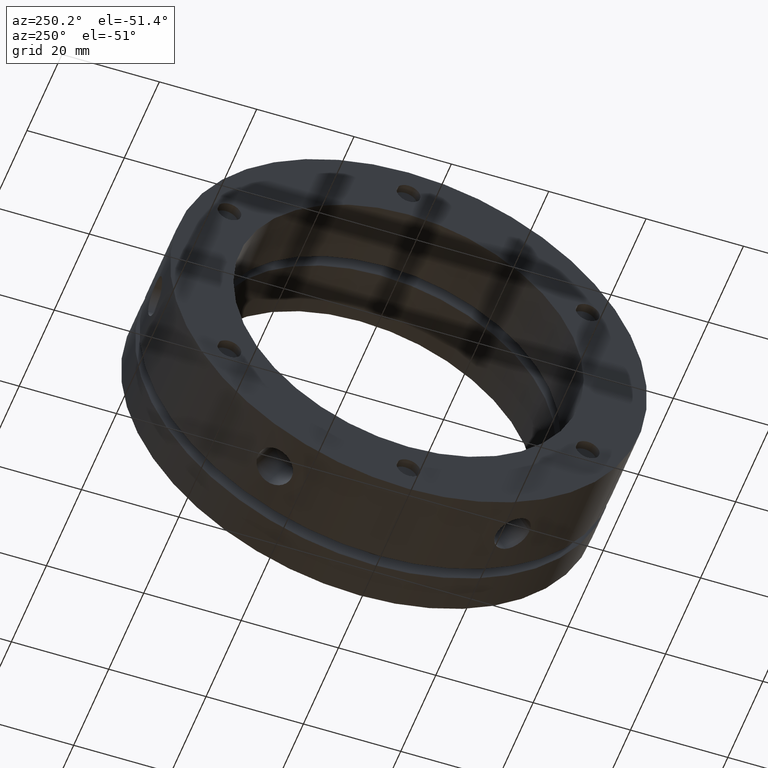
[diagram: clean part render]
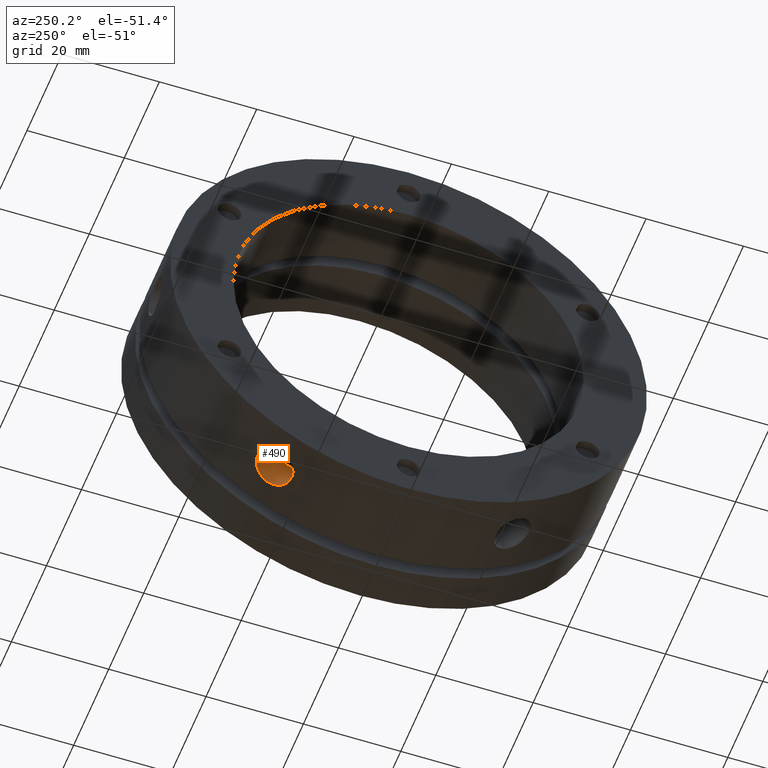
[diagram: same view with one face highlighted and labeled with its STEP entity id]
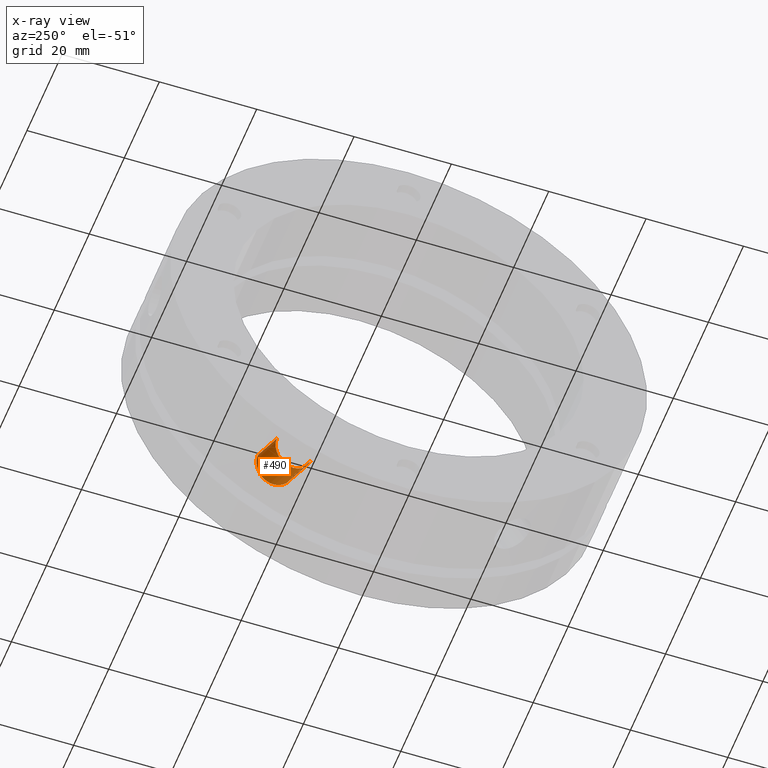
[diagram: x-ray of the same camera — body ghosted, the highlighted face saturated]
A machine part, auxiliary view. The second image highlights one B-rep face of the part: STEP entity #490.
The next image is the same camera in x-ray: the body ghosted, the highlighted face saturated — about 0% of this face is hidden behind the body in this view.
In plain terms, the highlighted cylindrical surface (edge-blend (fillet) strip) has radius 4 mm, axis along (0, 0.5, -0.866).
Its self-contained STEP definition (entity closure, byte-faithful):
#10 = VERTEX_POINT ( 'NONE', #165 ) ;
#129 = VERTEX_POINT ( 'NONE', #2058 ) ;
#134 = VERTEX_POINT ( 'NONE', #2063 ) ;
#146 = VERTEX_POINT ( 'NONE', #2074 ) ;
#165 = CARTESIAN_POINT ( 'NONE',  ( 8.499999999999989300, 23.96410161053460200, -33.50704155781963300 ) ) ;
#490 = ADVANCED_FACE ( 'NONE', ( #3123 ), #3131, .F. ) ;
#560 = EDGE_CURVE ( 'NONE', #10, #146, #3231, .T. ) ;
#611 = EDGE_CURVE ( 'NONE', #134, #129, #4760, .T. ) ;
#629 = EDGE_CURVE ( 'NONE', #146, #134, #3314, .T. ) ;
#630 = EDGE_CURVE ( 'NONE', #10, #129, #3319, .T. ) ;
#1334 = EDGE_LOOP ( 'NONE', ( #1633, #1634, #1635, #1636 ) ) ;
#1633 = ORIENTED_EDGE ( 'NONE', *, *, #629, .F. ) ;
#1634 = ORIENTED_EDGE ( 'NONE', *, *, #560, .F. ) ;
#1635 = ORIENTED_EDGE ( 'NONE', *, *, #630, .T. ) ;
#1636 = ORIENTED_EDGE ( 'NONE', *, *, #611, .F. ) ;
#2058 = CARTESIAN_POINT ( 'NONE',  ( 8.499999999999989300, 27.88233250928730200, -40.29361653961506600 ) ) ;
#2063 = CARTESIAN_POINT ( 'NONE',  ( 8.499999999999989300, 20.95412927901179100, -44.29361653961505900 ) ) ;
#2074 = CARTESIAN_POINT ( 'NONE',  ( 8.499999999999989300, 17.03589838946538000, -37.50704155250438300 ) ) ;
#2408 = DIRECTION ( 'NONE',  ( 0.0000000000000000000, 0.8660254037844384900, 0.5000000000000004400 ) ) ;
#2410 = DIRECTION ( 'NONE',  ( 0.0000000000000000000, 0.4999999999999998900, -0.8660254037844388200 ) ) ;
#2412 = CARTESIAN_POINT ( 'NONE',  ( 8.499999999999989300, 22.49999999999999300, -38.97114317029975400 ) ) ;
#2624 = CARTESIAN_POINT ( 'NONE',  ( 8.499999999999989300, 20.49999999999999300, -35.50704155516200400 ) ) ;
#2625 = DIRECTION ( 'NONE',  ( 0.0000000000000000000, 0.4999999999999998900, -0.8660254037844388200 ) ) ;
#2626 = DIRECTION ( 'NONE',  ( 0.0000000000000000000, 0.8660254037844384900, 0.5000000000000004400 ) ) ;
#2969 = CARTESIAN_POINT ( 'NONE',  ( 8.499999999999989300, 20.95412927901179100, -44.29361653961505900 ) ) ;
#2970 = CARTESIAN_POINT ( 'NONE',  ( 8.760963872471979400, 20.95412927901179500, -44.29361653961505900 ) ) ;
#3123 = FACE_OUTER_BOUND ( 'NONE', #1334, .T. ) ;
#3131 = CYLINDRICAL_SURFACE ( 'NONE', #4617, 4.000000000000000000 ) ;
#3231 = CIRCLE ( 'NONE', #4683, 4.000000000000000000 ) ;
#3314 = LINE ( 'NONE', #3872, #3321 ) ;
#3319 = LINE ( 'NONE', #3871, #3323 ) ;
#3321 = VECTOR ( 'NONE', #3869, 1000.000000000000100 ) ;
#3323 = VECTOR ( 'NONE', #3876, 1000.000000000000100 ) ;
#3706 = CARTESIAN_POINT ( 'NONE',  ( 9.026035824614512000, 20.97783354609335800, -44.28242466658662800 ) ) ;
#3707 = CARTESIAN_POINT ( 'NONE',  ( 9.538999560013133200, 21.07056132636707300, -44.23837790913362500 ) ) ;
#3708 = CARTESIAN_POINT ( 'NONE',  ( 9.788331771874437600, 21.13907663472742400, -44.20576379356131700 ) ) ;
#3709 = CARTESIAN_POINT ( 'NONE',  ( 10.27262034880529400, 21.32035090390775900, -44.11862136190628500 ) ) ;
#3710 = CARTESIAN_POINT ( 'NONE',  ( 10.50663492229444500, 21.43343772528955800, -44.06391736831359700 ) ) ;
#3711 = CARTESIAN_POINT ( 'NONE',  ( 10.93981204351128000, 21.69410342451483200, -43.93616896330276900 ) ) ;
#3712 = CARTESIAN_POINT ( 'NONE',  ( 11.14174796979365600, 21.84259140893010500, -43.86269686343494100 ) ) ;
#3713 = CARTESIAN_POINT ( 'NONE',  ( 11.51515335723669200, 22.17677047173003800, -43.69468877375435800 ) ) ;
#3714 = CARTESIAN_POINT ( 'NONE',  ( 11.68060047330957300, 22.35710253032093700, -43.60283200924752100 ) ) ;
#3715 = CARTESIAN_POINT ( 'NONE',  ( 11.97013872550250500, 22.74202157434915600, -43.40331148068980100 ) ) ;
#3716 = CARTESIAN_POINT ( 'NONE',  ( 12.09533768651406800, 22.94909940526057200, -43.29431352513163500 ) ) ;
#3717 = CARTESIAN_POINT ( 'NONE',  ( 12.29598008835223600, 23.37627579612271200, -43.06516547081334800 ) ) ;
#3718 = CARTESIAN_POINT ( 'NONE',  ( 12.37159009909022000, 23.59519802513826300, -42.94569078617250600 ) ) ;
#3719 = CARTESIAN_POINT ( 'NONE',  ( 12.47385425685963200, 24.04328582827976400, -42.69644169631319400 ) ) ;
#3720 = CARTESIAN_POINT ( 'NONE',  ( 12.50018620766423700, 24.27355473107198600, -42.56600057457603700 ) ) ;
#3721 = CARTESIAN_POINT ( 'NONE',  ( 12.49981178570346800, 24.73135228231641800, -42.30165574165057100 ) ) ;
#3722 = CARTESIAN_POINT ( 'NONE',  ( 12.47368633353813300, 24.95533980412091800, -42.16985151664376700 ) ) ;
#3723 = CARTESIAN_POINT ( 'NONE',  ( 12.37168036321317300, 25.39401464883732700, -41.90715191574774000 ) ) ;
#3724 = CARTESIAN_POINT ( 'NONE',  ( 12.29455035675926800, 25.61096008318150700, -41.77484144737244500 ) ) ;
#3725 = CARTESIAN_POINT ( 'NONE',  ( 12.09345343626602300, 26.02264996916053600, -41.51963803934194900 ) ) ;
#3726 = CARTESIAN_POINT ( 'NONE',  ( 11.97045145947903300, 26.21699859976384400, -41.39705646206577700 ) ) ;
#3727 = CARTESIAN_POINT ( 'NONE',  ( 11.67991826766577100, 26.58343593731494500, -41.16270439451412200 ) ) ;
#3728 = CARTESIAN_POINT ( 'NONE',  ( 11.51092940733693300, 26.75608809236734600, -41.05052763034486000 ) ) ;
#3729 = CARTESIAN_POINT ( 'NONE',  ( 11.14186185225656400, 27.06458933698133500, -40.84779152851210400 ) ) ;
#3730 = CARTESIAN_POINT ( 'NONE',  ( 10.94047706253328500, 27.20253117441088600, -40.75590428584623500 ) ) ;
#3731 = CARTESIAN_POINT ( 'NONE',  ( 10.50310688374896800, 27.44560042818260500, -40.59261575198620200 ) ) ;
#3732 = CARTESIAN_POINT ( 'NONE',  ( 10.27043549003969900, 27.54846558440893700, -40.52273464961442100 ) ) ;
#3733 = CARTESIAN_POINT ( 'NONE',  ( 9.789106448346297300, 27.71346550737788300, -40.41007063975268200 ) ) ;
#3734 = CARTESIAN_POINT ( 'NONE',  ( 9.536887450377125900, 27.77683991392707000, -40.36644407118083000 ) ) ;
#3735 = CARTESIAN_POINT ( 'NONE',  ( 9.020547821200779000, 27.86147537706606100, -40.30807403447656900 ) ) ;
#3736 = CARTESIAN_POINT ( 'NONE',  ( 8.760963500112257700, 27.88233250928730600, -40.29361653961505900 ) ) ;
#3737 = CARTESIAN_POINT ( 'NONE',  ( 8.499999999999989300, 27.88233250928730200, -40.29361653961506600 ) ) ;
#3869 = DIRECTION ( 'NONE',  ( 0.0000000000000000000, 0.4999999999999998300, -0.8660254037844387100 ) ) ;
#3871 = CARTESIAN_POINT ( 'NONE',  ( 8.499999999999989300, 25.96410161513774600, -36.97114317029975400 ) ) ;
#3872 = CARTESIAN_POINT ( 'NONE',  ( 8.499999999999989300, 19.03589838486223900, -40.97114317029975400 ) ) ;
#3876 = DIRECTION ( 'NONE',  ( 0.0000000000000000000, 0.4999999999999998300, -0.8660254037844387100 ) ) ;
#4617 = AXIS2_PLACEMENT_3D ( 'NONE', #2412, #2410, #2408 ) ;
#4683 = AXIS2_PLACEMENT_3D ( 'NONE', #2624, #2625, #2626 ) ;
#4760 = B_SPLINE_CURVE_WITH_KNOTS ( 'NONE', 3,
 ( #2969, #2970, #3706, #3707, #3708, #3709, #3710, #3711, #3712, #3713, #3714, #3715, #3716, #3717, #3718, #3719, #3720, #3721, #3722, #3723, #3724, #3725, #3726, #3727, #3728, #3729, #3730, #3731, #3732, #3733, #3734, #3735, #3736, #3737 ),
 .UNSPECIFIED., .F., .F.,
 ( 4, 2, 2, 2, 2, 2, 2, 2, 2, 2, 2, 2, 2, 2, 2, 2, 4 ),
 ( 0.006256951149992950500, 0.007038722036710624000, 0.007820492923428297400, 0.008602263810145970000, 0.009384034696863642600, 0.01016580558358131500, 0.01094757647029899000, 0.01172934735701666200, 0.01251111824373433600, 0.01329288913045200900, 0.01407466001716968200, 0.01485643090388735400, 0.01563820179060503000, 0.01641997267732270300, 0.01720174356404037500, 0.01798351445075804800, 0.01876528533747572100 ),
 .UNSPECIFIED. ) ;